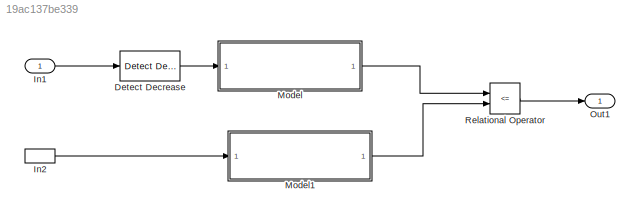
MODEL slx_19ac137be339
KIND model
CONFIG AbsTol = auto
CONFIG EnableMultiTasking = off
CONFIG FixedStep = auto
CONFIG MaxStep = auto
CONFIG MinStep = auto
CONFIG RelTol = 1e-3
CONFIG SampleTimeConstraint = Unconstrained
CONFIG Solver = VariableStepAuto
CONFIG SolverName = VariableStepAuto
CONFIG StartTime = 0.0
CONFIG StopTime = 10.0
BLOCK [Reference] Detect Decrease  REF=simulink/Logic and Bit
Operations/Detect
Decrease
  Ports = [1, 1]
  SourceBlock = simulink/Logic and Bit\nOperations/Detect\nDecrease
  SourceType = Detect Decrease
BLOCK [Inport] In1
  IconDisplay = Port number
BLOCK [InportShadow] In2
  IconDisplay = Port number
BLOCK [ModelReference] Model
  ModelNameDialog = Block1121.slx
  ModelReferenceVersion = 1.1
  Ports = [1, 1]
  Variant = off
BLOCK [ModelReference] Model1
  ModelNameDialog = Block1122.slx
  ModelReferenceVersion = 1.1
  Ports = [1, 1]
  Variant = off
BLOCK [Outport] Out1
  IconDisplay = Port number
BLOCK [RelationalOperator] Relational Operator
  InputSameDT = off
  Operator = <=
  OutDataTypeStr = boolean
  Ports = [2, 1]
  RndMeth = Simplest
LINE Detect Decrease:1 -> Model:1
LINE In1:1 -> Detect Decrease:1
LINE In2:1 -> Model1:1
LINE Model1:1 -> Relational Operator:2
LINE Model:1 -> Relational Operator:1
LINE Relational Operator:1 -> Out1:1
